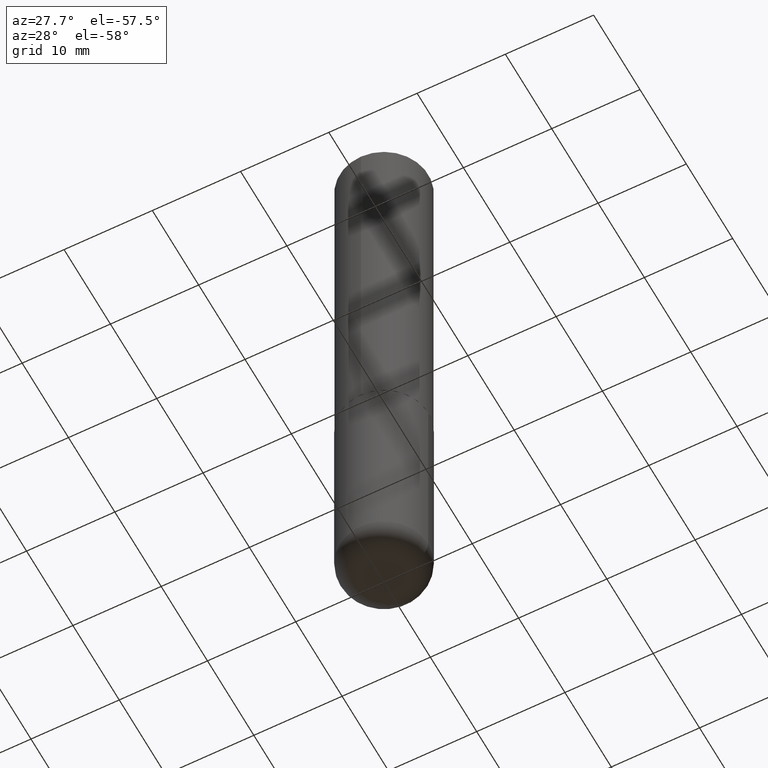
[diagram: clean part render]
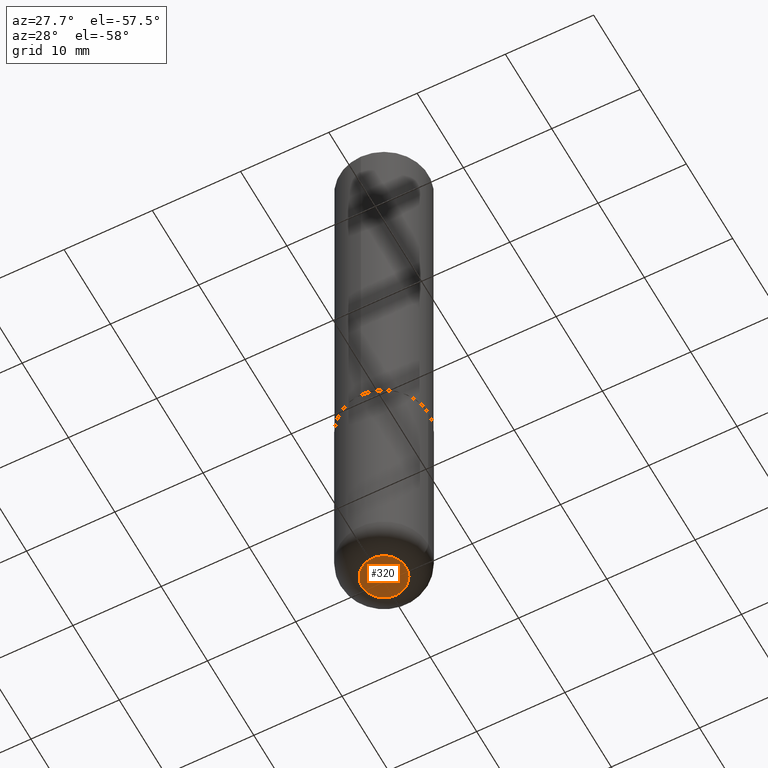
[diagram: same view with one face highlighted and labeled with its STEP entity id]
A machine part, auxiliary view. The second image highlights one B-rep face of the part: STEP entity #320.
In plain terms, the highlighted planar face has unit normal (0, -0, -1).
Its self-contained STEP definition (entity closure, byte-faithful):
#8 = VERTEX_POINT ( 'NONE', #18 ) ;
#18 = CARTESIAN_POINT ( 'NONE',  ( 0.09845000000000002360, -1.058442567870299660E-14, -2.834600000000000453 ) ) ;
#21 = CIRCLE ( 'NONE', #329, 0.09845000000000002360 ) ;
#22 = AXIS2_PLACEMENT_3D ( 'NONE', #36, #394, #239 ) ;
#24 = DIRECTION ( 'NONE',  ( -2.445468806185136597E-29, 3.491481338843145583E-15, 1.000000000000000000 ) ) ;
#36 = CARTESIAN_POINT ( 'NONE',  ( 6.931925878012389760E-29, -9.896953003084782463E-15, -2.834600000000000453 ) ) ;
#45 = DIRECTION ( 'NONE',  ( 2.438088387897960049E-29, -3.491481338843145188E-15, -1.000000000000000000 ) ) ;
#48 = DIRECTION ( 'NONE',  ( 1.000000000000000000, -6.982962677686273021E-15, 0.000000000000000000 ) ) ;
#57 = FACE_OUTER_BOUND ( 'NONE', #131, .T. ) ;
#91 = CARTESIAN_POINT ( 'NONE',  ( -4.053130985315826548E-29, -2.562817966197909100E-14, -2.834600000000000453 ) ) ;
#104 = EDGE_CURVE ( 'NONE', #283, #8, #21, .T. ) ;
#106 = ORIENTED_EDGE ( 'NONE', *, *, #104, .F. ) ;
#128 = DIRECTION ( 'NONE',  ( -1.000000000000000000, 6.982962677686265922E-15, -4.876176775795935793E-29 ) ) ;
#131 = EDGE_LOOP ( 'NONE', ( #263, #106 ) ) ;
#239 = DIRECTION ( 'NONE',  ( 1.000000000000000000, -6.982962677686273021E-15, 0.000000000000000000 ) ) ;
#250 = CIRCLE ( 'NONE', #22, 0.09845000000000002360 ) ;
#252 = CARTESIAN_POINT ( 'NONE',  ( -0.09845000000000002360, -8.676055771863907124E-15, -2.834600000000000453 ) ) ;
#263 = ORIENTED_EDGE ( 'NONE', *, *, #360, .F. ) ;
#275 = AXIS2_PLACEMENT_3D ( 'NONE', #91, #45, #128 ) ;
#283 = VERTEX_POINT ( 'NONE', #252 ) ;
#289 = PLANE ( 'NONE',  #275 ) ;
#320 = ADVANCED_FACE ( 'NONE', ( #57 ), #289, .T. ) ;
#329 = AXIS2_PLACEMENT_3D ( 'NONE', #342, #24, #48 ) ;
#342 = CARTESIAN_POINT ( 'NONE',  ( 6.931925878012389760E-29, -9.896953003084782463E-15, -2.834600000000000453 ) ) ;
#360 = EDGE_CURVE ( 'NONE', #8, #283, #250, .T. ) ;
#394 = DIRECTION ( 'NONE',  ( -2.445468806185136597E-29, 3.491481338843145583E-15, 1.000000000000000000 ) ) ;